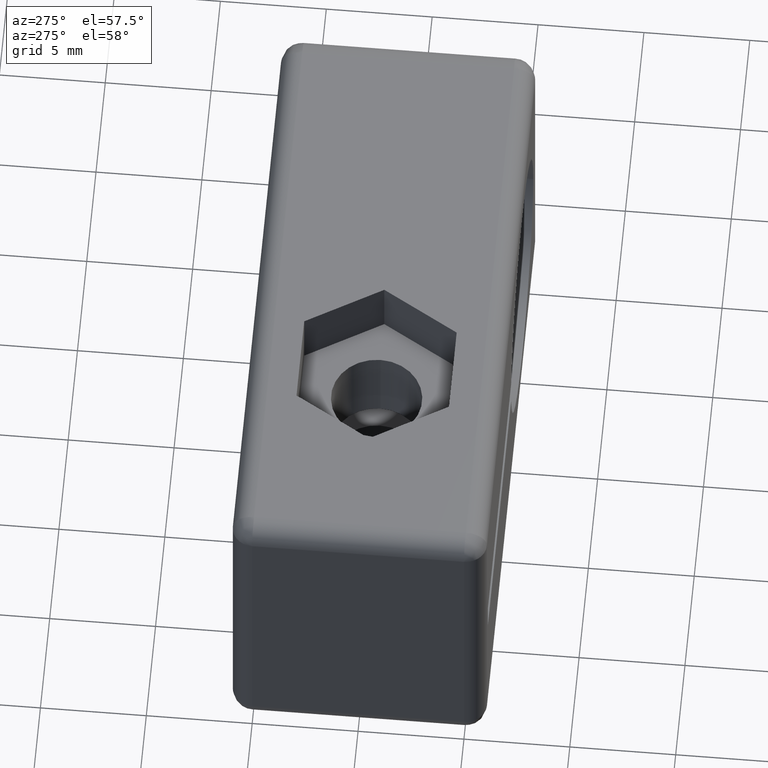
[diagram: clean part render]
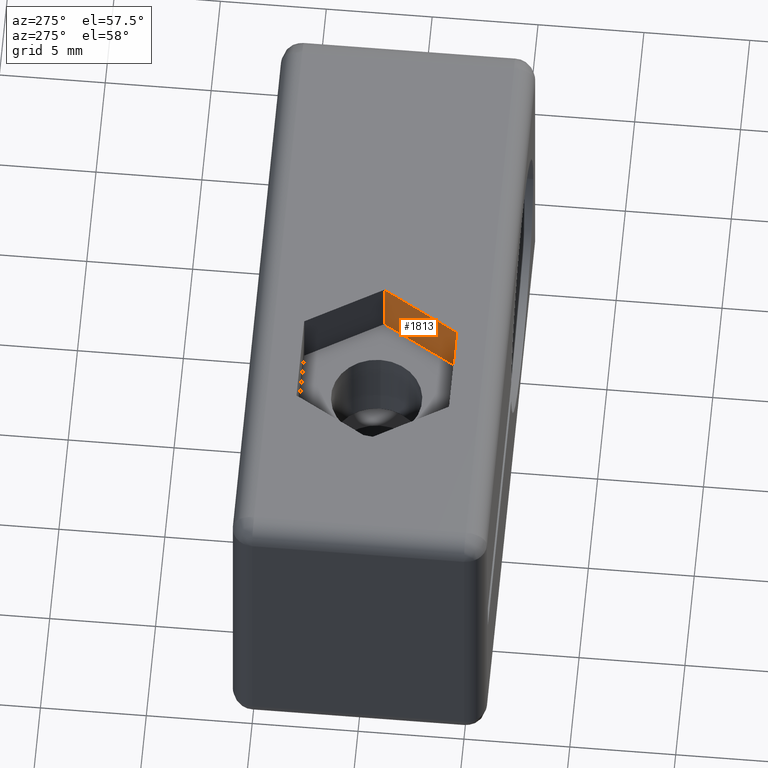
[diagram: same view with one face highlighted and labeled with its STEP entity id]
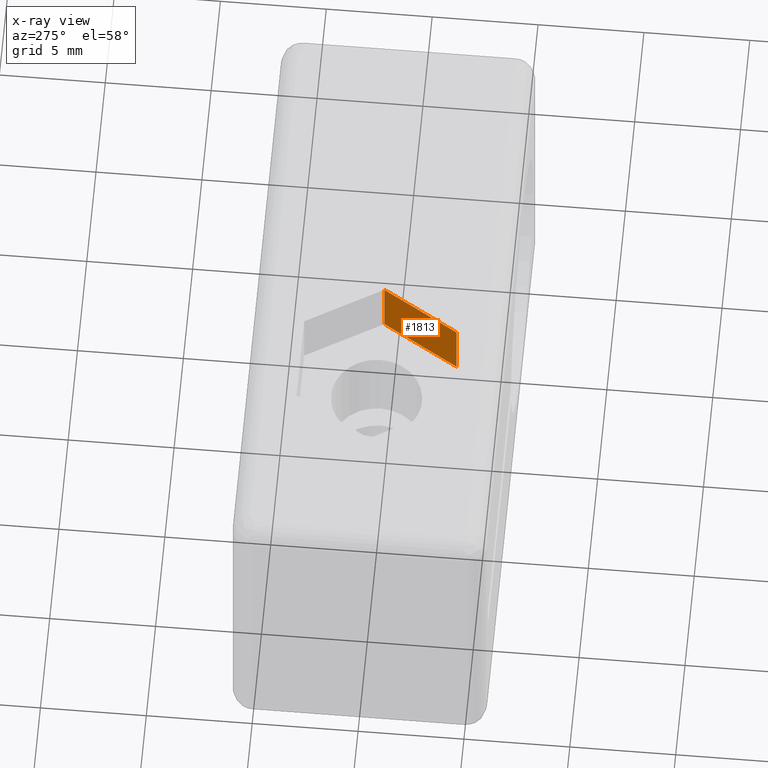
[diagram: x-ray of the same camera — body ghosted, the highlighted face saturated]
A machine part, auxiliary view. The second image highlights one B-rep face of the part: STEP entity #1813.
The next image is the same camera in x-ray: the body ghosted, the highlighted face saturated — about 0% of this face is hidden behind the body in this view.
In plain terms, the highlighted planar face has unit normal (0.866, -0.5, 0).
Its self-contained STEP definition (entity closure, byte-faithful):
#74 = FACE_OUTER_BOUND ( 'NONE', #3217, .T. ) ;
#201 = LINE ( 'NONE', #3868, #2984 ) ;
#689 = VERTEX_POINT ( 'NONE', #870 ) ;
#870 = CARTESIAN_POINT ( 'NONE',  ( 4.156921938165308600, 8.550872054697259100E-016, 16.00000000000000000 ) ) ;
#1236 = LINE ( 'NONE', #3684, #5558 ) ;
#1344 = CARTESIAN_POINT ( 'NONE',  ( 4.156921938165305100, 4.336808689942017700E-015, 13.00000000000000200 ) ) ;
#1813 = ADVANCED_FACE ( 'NONE', ( #74 ), #3063, .F. ) ;
#1933 = VERTEX_POINT ( 'NONE', #3580 ) ;
#2013 = EDGE_CURVE ( 'NONE', #5410, #1933, #1236, .T. ) ;
#2114 = ORIENTED_EDGE ( 'NONE', *, *, #2224, .F. ) ;
#2198 = DIRECTION ( 'NONE',  ( 0.8660254037844387100, -0.4999999999999998300, 0.0000000000000000000 ) ) ;
#2224 = EDGE_CURVE ( 'NONE', #5410, #689, #4139, .T. ) ;
#2491 = CARTESIAN_POINT ( 'NONE',  ( 2.078460969082649900, -3.600000000000000100, 16.00000000000000000 ) ) ;
#2580 = DIRECTION ( 'NONE',  ( -0.0000000000000000000, 0.0000000000000000000, 1.000000000000000000 ) ) ;
#2693 = ORIENTED_EDGE ( 'NONE', *, *, #2743, .T. ) ;
#2710 = EDGE_CURVE ( 'NONE', #689, #4032, #201, .T. ) ;
#2743 = EDGE_CURVE ( 'NONE', #1933, #4032, #4539, .T. ) ;
#2984 = VECTOR ( 'NONE', #4727, 1000.000000000000200 ) ;
#3063 = PLANE ( 'NONE',  #4022 ) ;
#3217 = EDGE_LOOP ( 'NONE', ( #2114, #4387, #2693, #5510 ) ) ;
#3563 = CARTESIAN_POINT ( 'NONE',  ( 2.078460969082649900, -3.600000000000000500, 13.00000000000000200 ) ) ;
#3580 = CARTESIAN_POINT ( 'NONE',  ( 2.078460969082649900, -3.600000000000000100, 13.00000000000000200 ) ) ;
#3684 = CARTESIAN_POINT ( 'NONE',  ( 4.156921938165310400, -1.002351020987810100E-017, 13.00000000000000200 ) ) ;
#3868 = CARTESIAN_POINT ( 'NONE',  ( 4.156921938165310400, 0.0000000000000000000, 16.00000000000000000 ) ) ;
#3892 = CARTESIAN_POINT ( 'NONE',  ( 2.078460969082649900, -3.599999999999998300, 13.00000000000000200 ) ) ;
#4022 = AXIS2_PLACEMENT_3D ( 'NONE', #3563, #2198, #4813 ) ;
#4032 = VERTEX_POINT ( 'NONE', #2491 ) ;
#4139 = LINE ( 'NONE', #1344, #4663 ) ;
#4272 = VECTOR ( 'NONE', #2580, 1000.000000000000000 ) ;
#4387 = ORIENTED_EDGE ( 'NONE', *, *, #2013, .T. ) ;
#4539 = LINE ( 'NONE', #3892, #4272 ) ;
#4551 = CARTESIAN_POINT ( 'NONE',  ( 4.156921938165308600, 9.162468568136809800E-016, 13.00000000000000200 ) ) ;
#4663 = VECTOR ( 'NONE', #5131, 1000.000000000000000 ) ;
#4727 = DIRECTION ( 'NONE',  ( -0.5000000000000013300, -0.8660254037844378200, 0.0000000000000000000 ) ) ;
#4813 = DIRECTION ( 'NONE',  ( 0.4999999999999998300, 0.8660254037844387100, 0.0000000000000000000 ) ) ;
#5131 = DIRECTION ( 'NONE',  ( -0.0000000000000000000, 0.0000000000000000000, 1.000000000000000000 ) ) ;
#5410 = VERTEX_POINT ( 'NONE', #4551 ) ;
#5454 = DIRECTION ( 'NONE',  ( -0.5000000000000013300, -0.8660254037844379300, 0.0000000000000000000 ) ) ;
#5510 = ORIENTED_EDGE ( 'NONE', *, *, #2710, .F. ) ;
#5558 = VECTOR ( 'NONE', #5454, 1000.000000000000000 ) ;